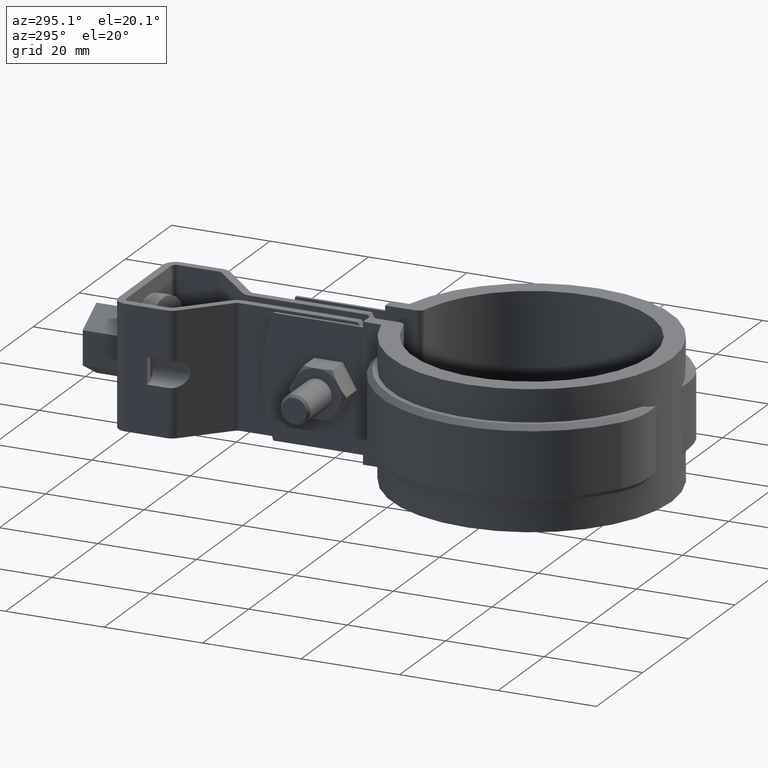
[diagram: clean part render]
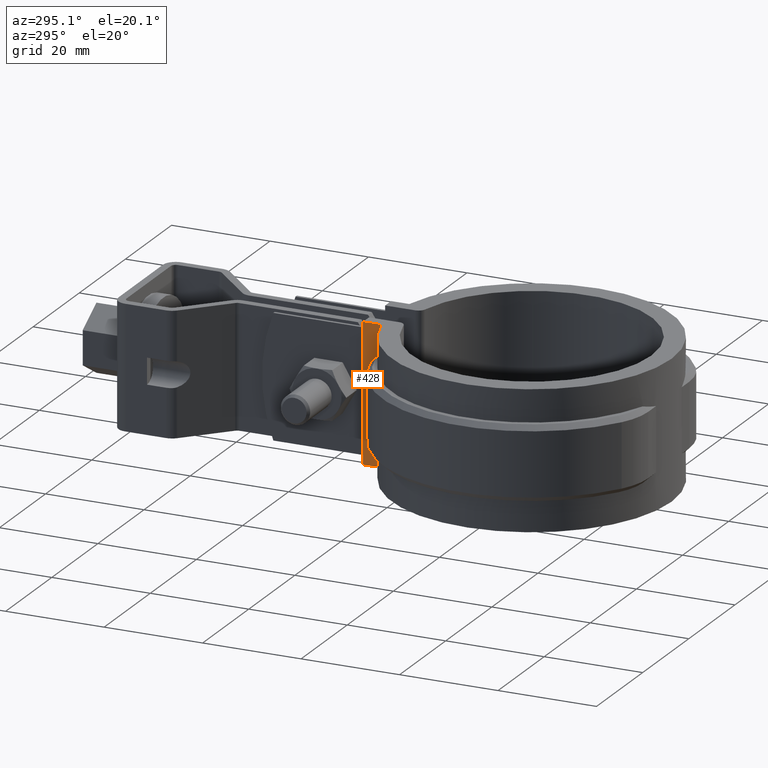
[diagram: same view with one face highlighted and labeled with its STEP entity id]
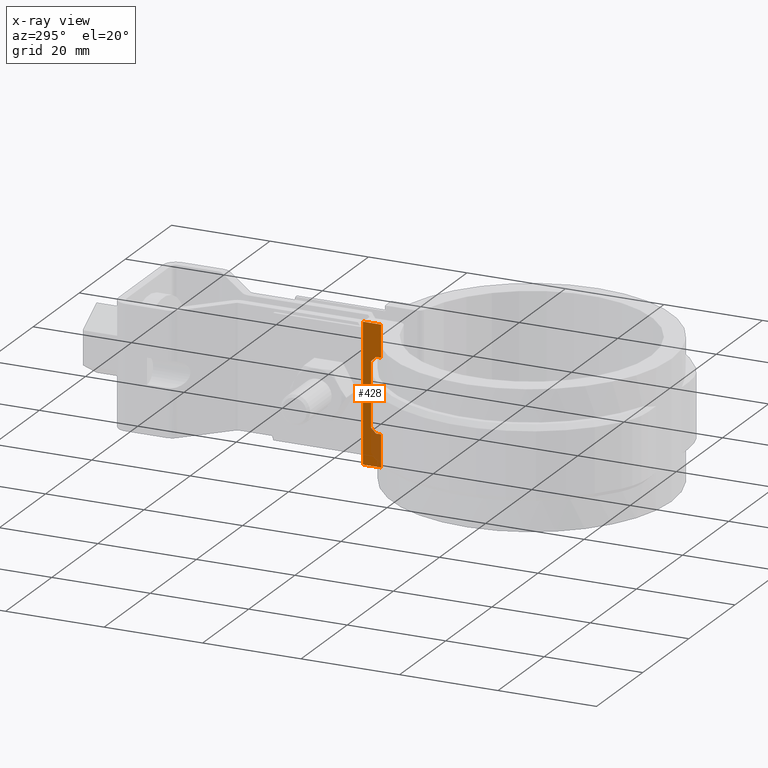
[diagram: x-ray of the same camera — body ghosted, the highlighted face saturated]
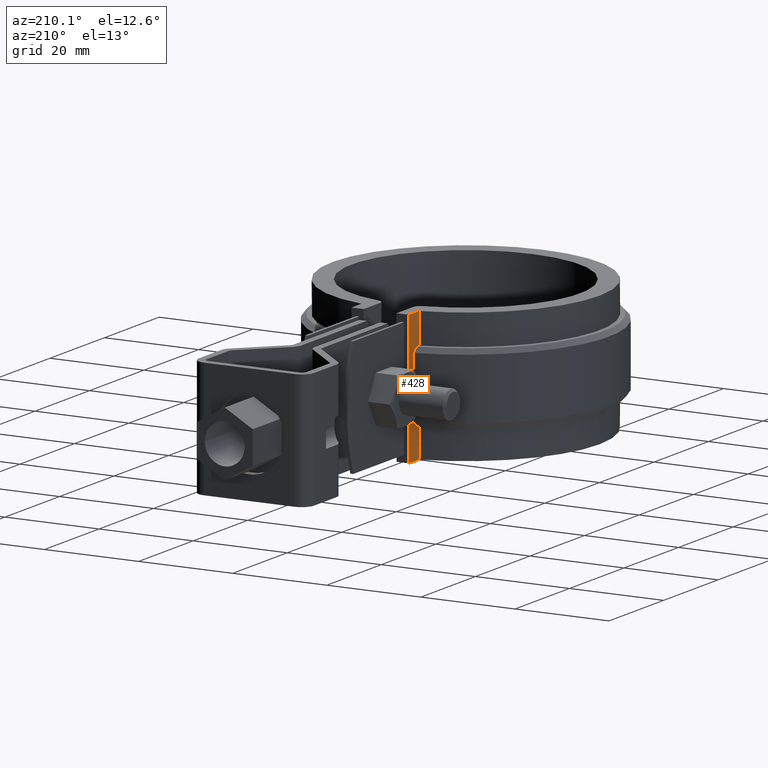
[diagram: same view with one face highlighted and labeled with its STEP entity id]
A machine part, auxiliary view. The second image highlights one B-rep face of the part: STEP entity #428.
The next image is the same camera in x-ray: the body ghosted, the highlighted face saturated — about 15% of this face is hidden behind the body in this view.
A second angle (auxiliary view) of the same face is appended — the face is thin or edge-on in the first view.
In plain terms, the highlighted planar face has unit normal (-1, 0, 0).
Its self-contained STEP definition (entity closure, byte-faithful):
#428 = ADVANCED_FACE( '', ( #786 ), #787, .T. );
#786 = FACE_OUTER_BOUND( '', #1919, .T. );
#787 = PLANE( '', #1920 );
#1919 = EDGE_LOOP( '', ( #4425, #4426, #4427, #4428, #4429, #4430, #4431, #4432, #4433, #4434 ) );
#1920 = AXIS2_PLACEMENT_3D( '', #4435, #4436, #4437 );
#4425 = ORIENTED_EDGE( '', *, *, #5846, .F. );
#4426 = ORIENTED_EDGE( '', *, *, #5670, .T. );
#4427 = ORIENTED_EDGE( '', *, *, #5847, .T. );
#4428 = ORIENTED_EDGE( '', *, *, #5848, .T. );
#4429 = ORIENTED_EDGE( '', *, *, #5849, .T. );
#4430 = ORIENTED_EDGE( '', *, *, #5850, .T. );
#4431 = ORIENTED_EDGE( '', *, *, #5851, .T. );
#4432 = ORIENTED_EDGE( '', *, *, #5852, .T. );
#4433 = ORIENTED_EDGE( '', *, *, #5853, .F. );
#4434 = ORIENTED_EDGE( '', *, *, #5854, .T. );
#4435 = CARTESIAN_POINT( '', ( -6.10000000000000, 31.8400000000000, -26.5000000000000 ) );
#4436 = DIRECTION( '', ( -1.00000000000000, 6.50521303491303E-017, 0.000000000000000 ) );
#4437 = DIRECTION( '', ( 6.50521303491303E-017, 1.00000000000000, 0.000000000000000 ) );
#5670 = EDGE_CURVE( '', #6449, #6447, #6450, .T. );
#5846 = EDGE_CURVE( '', #6449, #6740, #6741, .T. );
#5847 = EDGE_CURVE( '', #6447, #6742, #6743, .T. );
#5848 = EDGE_CURVE( '', #6742, #6744, #6745, .T. );
#5849 = EDGE_CURVE( '', #6744, #6746, #6747, .T. );
#5850 = EDGE_CURVE( '', #6746, #6748, #6749, .T. );
#5851 = EDGE_CURVE( '', #6748, #6750, #6751, .T. );
#5852 = EDGE_CURVE( '', #6750, #6752, #6753, .T. );
#5853 = EDGE_CURVE( '', #6754, #6752, #6755, .T. );
#5854 = EDGE_CURVE( '', #6754, #6740, #6756, .T. );
#6447 = VERTEX_POINT( '', #8518 );
#6449 = VERTEX_POINT( '', #8521 );
#6450 = LINE( '', #8522, #8523 );
#6740 = VERTEX_POINT( '', #10290 );
#6741 = LINE( '', #10291, #10292 );
#6742 = VERTEX_POINT( '', #10293 );
#6743 = LINE( '', #10294, #10295 );
#6744 = VERTEX_POINT( '', #10296 );
#6745 = LINE( '', #10297, #10298 );
#6746 = VERTEX_POINT( '', #10299 );
#6747 = LINE( '', #10300, #10301 );
#6748 = VERTEX_POINT( '', #10302 );
#6749 = B_SPLINE_CURVE_WITH_KNOTS( '', 3, ( #10303, #10304, #10305, #10306 ), .UNSPECIFIED., .F., .F., ( 4, 4 ), ( 0.000000000000000, 0.00142949551719674 ), .UNSPECIFIED. );
#6750 = VERTEX_POINT( '', #10307 );
#6751 = LINE( '', #10308, #10309 );
#6752 = VERTEX_POINT( '', #10310 );
#6753 = B_SPLINE_CURVE_WITH_KNOTS( '', 3, ( #10311, #10312, #10313, #10314 ), .UNSPECIFIED., .F., .F., ( 4, 4 ), ( 3.31418454737865E-017, 0.00142949551719674 ), .UNSPECIFIED. );
#6754 = VERTEX_POINT( '', #10315 );
#6755 = LINE( '', #10316, #10317 );
#6756 = LINE( '', #10318, #10319 );
#8518 = CARTESIAN_POINT( '', ( -6.10000000000000, 31.4045271556441, -26.5000000000000 ) );
#8521 = CARTESIAN_POINT( '', ( -6.10000000000000, 31.4045271556441, 1.50000000000000 ) );
#8522 = CARTESIAN_POINT( '', ( -6.10000000000000, 31.4045271556441, -26.5000000000000 ) );
#8523 = VECTOR( '', #11310, 1000.00000000000 );
#10290 = CARTESIAN_POINT( '', ( -6.10000000000000, 27.7320396833698, 1.50000000000000 ) );
#10291 = CARTESIAN_POINT( '', ( -6.10000000000000, 31.8400000000000, 1.50000000000000 ) );
#10292 = VECTOR( '', #11443, 1000.00000000000 );
#10293 = CARTESIAN_POINT( '', ( -6.10000000000000, 27.7320396833698, -26.5000000000000 ) );
#10294 = CARTESIAN_POINT( '', ( -6.10000000000000, 31.8400000000000, -26.5000000000000 ) );
#10295 = VECTOR( '', #11444, 1000.00000000000 );
#10296 = CARTESIAN_POINT( '', ( -6.10000000000001, 27.7320396833699, -20.0000000000000 ) );
#10297 = CARTESIAN_POINT( '', ( -6.10000000000000, 27.7320396833698, -26.5000000000000 ) );
#10298 = VECTOR( '', #11445, 1000.00000000000 );
#10299 = CARTESIAN_POINT( '', ( -6.09999999999999, 28.7551043294925, -20.0000000000000 ) );
#10300 = CARTESIAN_POINT( '', ( -6.09999999999999, 27.7320396833699, -20.0000000000000 ) );
#10301 = VECTOR( '', #11446, 1000.00000000000 );
#10302 = CARTESIAN_POINT( '', ( -6.09999999999999, 29.7766019720183, -19.0000000000000 ) );
#10303 = CARTESIAN_POINT( '', ( -6.09999999999999, 28.7551043294925, -20.0000000000000 ) );
#10304 = CARTESIAN_POINT( '', ( -6.09999999999999, 29.0957267367249, -19.6667925546205 ) );
#10305 = CARTESIAN_POINT( '', ( -6.10000000000000, 29.4362218572914, -19.3334549496763 ) );
#10306 = CARTESIAN_POINT( '', ( -6.10000000000000, 29.7766019720182, -19.0000000000000 ) );
#10307 = CARTESIAN_POINT( '', ( -6.09999999999999, 29.7766019720183, -6.00000000000000 ) );
#10308 = CARTESIAN_POINT( '', ( -6.09999999999999, 29.7766019720183, -20.0000000000000 ) );
#10309 = VECTOR( '', #11447, 1000.00000000000 );
#10310 = CARTESIAN_POINT( '', ( -6.09999999999999, 28.7551043294925, -5.00000000000000 ) );
#10311 = CARTESIAN_POINT( '', ( -6.09999999999998, 29.7766019720182, -6.00000000000000 ) );
#10312 = CARTESIAN_POINT( '', ( -6.09999999999998, 29.4362218572914, -5.66654505032372 ) );
#10313 = CARTESIAN_POINT( '', ( -6.10000000000000, 29.0957267367249, -5.33320744537946 ) );
#10314 = CARTESIAN_POINT( '', ( -6.10000000000000, 28.7551043294925, -5.00000000000000 ) );
#10315 = CARTESIAN_POINT( '', ( -6.10000000000001, 27.7320396833699, -5.00000000000000 ) );
#10316 = CARTESIAN_POINT( '', ( -6.09999999999999, 27.7320396833699, -5.00000000000000 ) );
#10317 = VECTOR( '', #11448, 1000.00000000000 );
#10318 = CARTESIAN_POINT( '', ( -6.10000000000000, 27.7320396833698, -26.5000000000000 ) );
#10319 = VECTOR( '', #11449, 1000.00000000000 );
#11310 = DIRECTION( '', ( 0.000000000000000, 0.000000000000000, -1.00000000000000 ) );
#11443 = DIRECTION( '', ( -6.50521303491303E-017, -1.00000000000000, 0.000000000000000 ) );
#11444 = DIRECTION( '', ( -6.50521303491303E-017, -1.00000000000000, 0.000000000000000 ) );
#11445 = DIRECTION( '', ( 0.000000000000000, 0.000000000000000, 1.00000000000000 ) );
#11446 = DIRECTION( '', ( 5.55111512312578E-017, 1.00000000000000, 0.000000000000000 ) );
#11447 = DIRECTION( '', ( 0.000000000000000, 0.000000000000000, 1.00000000000000 ) );
#11448 = DIRECTION( '', ( 5.55111512312578E-017, 1.00000000000000, 0.000000000000000 ) );
#11449 = DIRECTION( '', ( 0.000000000000000, 0.000000000000000, 1.00000000000000 ) );